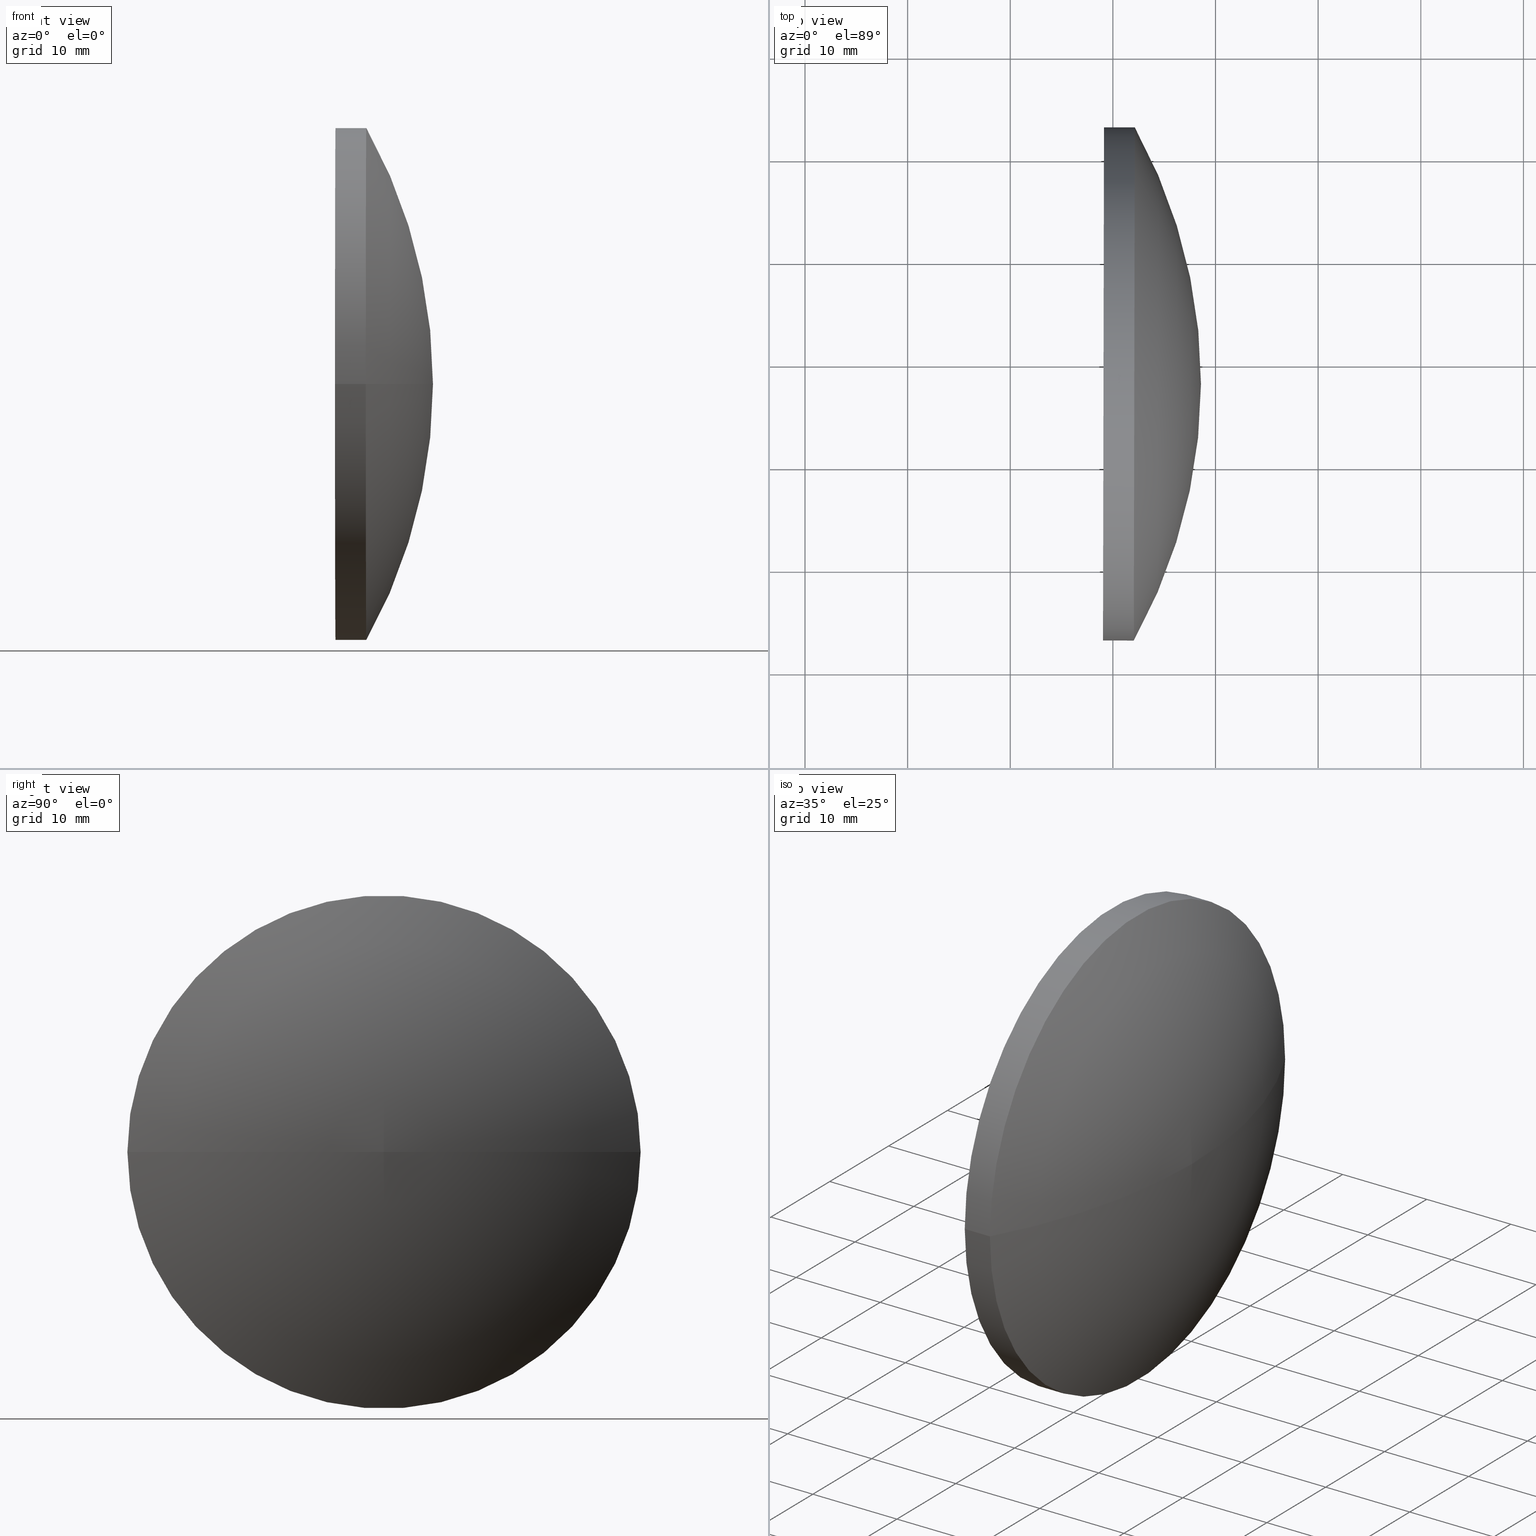
[diagram: canonical four-view strip — front | top / right | iso, engineering-drawing reading convention]
A machine part, canonical four-view strip (front | top / right | iso — engineering-drawing reading convention). The complete STEP part file that produces these views, byte-faithful:
ISO-10303-21;
HEADER;
FILE_DESCRIPTION (( 'STEP AP214' ),
    '1' );
FILE_NAME ('100154.STEP',
    '2019-05-16T02:12:29',
    ( '' ),
    ( '' ),
    'SwSTEP 2.0',
    'SolidWorks 2016',
    '' );
FILE_SCHEMA (( 'AUTOMOTIVE_DESIGN' ));
ENDSEC;

DATA;
#1 = CONICAL_SURFACE ( 'NONE', #83, 25.00578017029977200, 0.001942445883198638900 ) ;
#2 = AXIS2_PLACEMENT_3D ( 'NONE', #29, #45, #178 ) ;
#3 = ORIENTED_EDGE ( 'NONE', *, *, #32, .T. ) ;
#4 = LINE ( 'NONE', #12, #156 ) ;
#5 = DIRECTION ( 'NONE',  ( -0.9999981134525887100, 0.001942444661693687000, -0.0000000000000000000 ) ) ;
#6 = EDGE_LOOP ( 'NONE', ( #137, #54, #63 ) ) ;
#7 = DIRECTION ( 'NONE',  ( -0.001942444661691946700, -0.9999981134525887100, 0.0000000000000000000 ) ) ;
#8 = DIRECTION ( 'NONE',  ( 0.9999981134525887100, -0.001942444661693687000, 0.0000000000000000000 ) ) ;
#9 = EDGE_CURVE ( 'NONE', #180, #187, #65, .T. ) ;
#10 = CARTESIAN_POINT ( 'NONE',  ( 562.0356236752284100, 92.89304286200956500, 0.0000000000000000000 ) ) ;
#11 = VECTOR ( 'NONE', #85, 1000.000000000000000 ) ;
#12 = CARTESIAN_POINT ( 'NONE',  ( 562.0356236752284100, 92.89304286200958000, 3.062324864573997700E-015 ) ) ;
#13 =( LENGTH_UNIT ( ) NAMED_UNIT ( * ) SI_UNIT ( .MILLI., .METRE. ) );
#14 = COLOUR_RGB ( '',1.000000000000000000, 1.000000000000000000, 1.000000000000000000 ) ;
#15 = FILL_AREA_STYLE ('',( #90 ) ) ;
#16 = PRESENTATION_STYLE_ASSIGNMENT (( #132 ) ) ;
#17 = ORIENTED_EDGE ( 'NONE', *, *, #32, .F. ) ;
#18 = ORIENTED_EDGE ( 'NONE', *, *, #79, .T. ) ;
#19 = PRODUCT_DEFINITION_SHAPE ( 'NONE', 'NONE',  #110 ) ;
#20 = AXIS2_PLACEMENT_3D ( 'NONE', #189, #130, #145 ) ;
#21 = CARTESIAN_POINT ( 'NONE',  ( 516.9084745951666900, 118.0685464898730300, 0.0000000000000000000 ) ) ;
#22 = LINE ( 'NONE', #40, #177 ) ;
#23 = CARTESIAN_POINT ( 'NONE',  ( 562.0841960194317200, 117.8987758577195000, 0.0000000000000000000 ) ) ;
#24 = SHAPE_DEFINITION_REPRESENTATION ( #19, #36 ) ;
#25 = CARTESIAN_POINT ( 'NONE',  ( 562.1327683636350200, 142.9045088534293800, 3.062324864573990200E-015 ) ) ;
#26 = DIRECTION ( 'NONE',  ( -0.001942444661694359900, -0.9999981134525884900, 0.0000000000000000000 ) ) ;
#27 = DIRECTION ( 'NONE',  ( -0.9999981134525887100, 0.001942444661693687000, -0.0000000000000000000 ) ) ;
#28 = ORIENTED_EDGE ( 'NONE', *, *, #70, .T. ) ;
#29 = CARTESIAN_POINT ( 'NONE',  ( 0.0000000000000000000, 0.0000000000000000000, 0.0000000000000000000 ) ) ;
#30 = UNCERTAINTY_MEASURE_WITH_UNIT (LENGTH_MEASURE( 1.000000000000000100E-005 ), #13, 'distance_accuracy_value', 'NONE');
#31 = FILL_AREA_STYLE ('',( #159 ) ) ;
#32 = EDGE_CURVE ( 'NONE', #67, #135, #98, .T. ) ;
#33 = SURFACE_STYLE_FILL_AREA ( #31 ) ;
#34 = AXIS2_PLACEMENT_3D ( 'NONE', #44, #89, #114 ) ;
#35 = ORIENTED_EDGE ( 'NONE', *, *, #149, .F. ) ;
#36 = ADVANCED_BREP_SHAPE_REPRESENTATION ( '100154', ( #66, #2 ), #162 ) ;
#37 = VECTOR ( 'NONE', #42, 1000.000000000000100 ) ;
#38 = FACE_OUTER_BOUND ( 'NONE', #185, .T. ) ;
#39 = EDGE_CURVE ( 'NONE', #172, #67, #22, .T. ) ;
#40 = CARTESIAN_POINT ( 'NONE',  ( 559.1327683636350200, 142.9045088534294300, 3.061611221982758700E-015 ) ) ;
#41 = PRODUCT_DEFINITION_FORMATION_WITH_SPECIFIED_SOURCE ( '�κ�', '', #84, .NOT_KNOWN. ) ;
#42 = DIRECTION ( 'NONE',  ( -0.003884881994357643300, -0.9999924538174724800, 0.0000000000000000000 ) ) ;
#43 =( NAMED_UNIT ( * ) PLANE_ANGLE_UNIT ( ) SI_UNIT ( $, .RADIAN. ) );
#44 = CARTESIAN_POINT ( 'NONE',  ( 562.0841960194317200, 117.8987758577195000, 0.0000000000000000000 ) ) ;
#45 = DIRECTION ( 'NONE',  ( 0.0000000000000000000, 0.0000000000000000000, 1.000000000000000000 ) ) ;
#46 = PRESENTATION_STYLE_ASSIGNMENT (( #103 ) ) ;
#47 = ADVANCED_FACE ( 'NONE', ( #57 ), #124, .F. ) ;
#48 = ADVANCED_FACE ( 'NONE', ( #91 ), #129, .T. ) ;
#49 = EDGE_LOOP ( 'NONE', ( #82, #164, #144 ) ) ;
#50 = CIRCLE ( 'NONE', #155, 25.00578017029977200 ) ;
#51 = PRESENTATION_LAYER_ASSIGNMENT (  '', '', ( #119 ) ) ;
#52 = VERTEX_POINT ( 'NONE', #25 ) ;
#53 = DIRECTION ( 'NONE',  ( -0.001942444661691946700, -0.9999981134525887100, 0.0000000000000000000 ) ) ;
#54 = ORIENTED_EDGE ( 'NONE', *, *, #9, .T. ) ;
#55 = DIRECTION ( 'NONE',  ( -0.001942444661693686800, -0.9999981134525886000, 0.0000000000000000000 ) ) ;
#56 =( NAMED_UNIT ( * ) PLANE_ANGLE_UNIT ( ) SI_UNIT ( $, .RADIAN. ) );
#57 = FACE_OUTER_BOUND ( 'NONE', #49, .T. ) ;
#58 = APPLICATION_PROTOCOL_DEFINITION ( 'draft international standard', 'automotive_design', 1998, #143 ) ;
#59 =( LENGTH_UNIT ( ) NAMED_UNIT ( * ) SI_UNIT ( .MILLI., .METRE. ) );
#60 = MECHANICAL_DESIGN_GEOMETRIC_PRESENTATION_REPRESENTATION (  '', ( #119 ), #181 ) ;
#61 = ADVANCED_FACE ( 'NONE', ( #95 ), #1, .T. ) ;
#62 = EDGE_LOOP ( 'NONE', ( #109, #108, #3 ) ) ;
#63 = ORIENTED_EDGE ( 'NONE', *, *, #140, .F. ) ;
#64 = DIRECTION ( 'NONE',  ( 0.001942444661694359900, 0.9999981134525884900, 0.0000000000000000000 ) ) ;
#65 = CIRCLE ( 'NONE', #184, 51.67461240310073100 ) ;
#66 = MANIFOLD_SOLID_BREP ( '��ת1', #97 ) ;
#67 = VERTEX_POINT ( 'NONE', #190 ) ;
#68 = DIRECTION ( 'NONE',  ( 0.9999981134525887100, -0.001942444661693687000, 0.0000000000000000000 ) ) ;
#69 = STYLED_ITEM ( 'NONE', ( #16 ), #36 ) ;
#70 = EDGE_CURVE ( 'NONE', #180, #52, #151, .T. ) ;
#71 = DIRECTION ( 'NONE',  ( -0.001942444661691946700, -0.9999981134525887100, 0.0000000000000000000 ) ) ;
#72 = DIRECTION ( 'NONE',  ( -0.9999981134525887100, 0.001942444661693687000, -0.0000000000000000000 ) ) ;
#73 = AXIS2_PLACEMENT_3D ( 'NONE', #111, #99, #7 ) ;
#74 = COLOUR_RGB ( '',1.000000000000000000, 1.000000000000000000, 1.000000000000000000 ) ;
#75 =( NAMED_UNIT ( * ) SI_UNIT ( $, .STERADIAN. ) SOLID_ANGLE_UNIT ( ) );
#76 = LINE ( 'NONE', #116, #11 ) ;
#77 = CIRCLE ( 'NONE', #183, 24.99995283631469100 ) ;
#78 = ADVANCED_FACE ( 'NONE', ( #38 ), #86, .T. ) ;
#79 = EDGE_CURVE ( 'NONE', #67, #52, #76, .T. ) ;
#80 = PRODUCT_RELATED_PRODUCT_CATEGORY ( 'part', '', ( #84 ) ) ;
#81 = UNCERTAINTY_MEASURE_WITH_UNIT (LENGTH_MEASURE( 1.000000000000000100E-005 ), #126, 'distance_accuracy_value', 'NONE');
#82 = ORIENTED_EDGE ( 'NONE', *, *, #39, .F. ) ;
#83 = AXIS2_PLACEMENT_3D ( 'NONE', #23, #8, #64 ) ;
#84 = PRODUCT ( '100154', '100154', '', ( #146 ) ) ;
#85 = DIRECTION ( 'NONE',  ( 1.000000000000000000, -6.190794404892230300E-016, 0.0000000000000000000 ) ) ;
#86 = TOROIDAL_SURFACE ( 'NONE', #112, -0.08201897295444926500, 51.67461240310074500 ) ;
#87 = DIRECTION ( 'NONE',  ( -0.9999981134525887100, 0.001942444661693687000, -0.0000000000000000000 ) ) ;
#88 = DIRECTION ( 'NONE',  ( 0.9999924538174724800, -0.003884881994358857600, 2.378808637463279100E-019 ) ) ;
#89 = DIRECTION ( 'NONE',  ( -0.9999981134525887100, 0.001942444661693687000, -0.0000000000000000000 ) ) ;
#90 = FILL_AREA_STYLE_COLOUR ( '', #74 ) ;
#91 = FACE_OUTER_BOUND ( 'NONE', #136, .T. ) ;
#92 = APPLICATION_CONTEXT ( 'automotive_design' ) ;
#93 = EDGE_CURVE ( 'NONE', #172, #135, #115, .T. ) ;
#94 =( NAMED_UNIT ( * ) PLANE_ANGLE_UNIT ( ) SI_UNIT ( $, .RADIAN. ) );
#95 = FACE_OUTER_BOUND ( 'NONE', #122, .T. ) ;
#96 = AXIS2_PLACEMENT_3D ( 'NONE', #175, #27, #71 ) ;
#97 = CLOSED_SHELL ( 'NONE', ( #121, #61, #78, #133, #48, #47 ) ) ;
#98 = CIRCLE ( 'NONE', #166, 24.99995283631469100 ) ;
#99 = DIRECTION ( 'NONE',  ( -0.9999981134525887100, 0.001942444661693687000, -0.0000000000000000000 ) ) ;
#100 = EDGE_CURVE ( 'NONE', #135, #187, #4, .T. ) ;
#101 = DIRECTION ( 'NONE',  ( 1.833385873672988000E-015, 1.000000000000000000, 1.224644488793104600E-016 ) ) ;
#102 = CARTESIAN_POINT ( 'NONE',  ( 516.9083152778504200, 117.9865276716512600, 0.0000000000000000000 ) ) ;
#103 = SURFACE_STYLE_USAGE ( .BOTH. , #141 ) ;
#104 = ORIENTED_EDGE ( 'NONE', *, *, #140, .T. ) ;
#105 = CARTESIAN_POINT ( 'NONE',  ( 568.5827651033539500, 117.8861527230796500, 0.0000000000000000000 ) ) ;
#106 = CARTESIAN_POINT ( 'NONE',  ( 516.9083152778504200, 117.9865276716512600, 0.0000000000000000000 ) ) ;
#107 = PRESENTATION_LAYER_ASSIGNMENT (  '', '', ( #69 ) ) ;
#108 = ORIENTED_EDGE ( 'NONE', *, *, #39, .T. ) ;
#109 = ORIENTED_EDGE ( 'NONE', *, *, #93, .F. ) ;
#110 = PRODUCT_DEFINITION ( 'δ֪', '', #41, #179 ) ;
#111 = CARTESIAN_POINT ( 'NONE',  ( 559.0842073387056000, 117.9046031807110400, 0.0000000000000000000 ) ) ;
#112 = AXIS2_PLACEMENT_3D ( 'NONE', #102, #87, #127 ) ;
#113 = DIRECTION ( 'NONE',  ( -0.9999981134525887100, 0.001942444661693687000, -0.0000000000000000000 ) ) ;
#114 = DIRECTION ( 'NONE',  ( -0.001942444661694359900, -0.9999981134525884900, 0.0000000000000000000 ) ) ;
#115 = LINE ( 'NONE', #167, #37 ) ;
#116 = CARTESIAN_POINT ( 'NONE',  ( 562.1327683636350200, 142.9045088534294300, 0.0000000000000000000 ) ) ;
#117 = SURFACE_SIDE_STYLE ('',( #157 ) ) ;
#118 = ORIENTED_EDGE ( 'NONE', *, *, #134, .F. ) ;
#119 = STYLED_ITEM ( 'NONE', ( #46 ), #66 ) ;
#120 = FACE_OUTER_BOUND ( 'NONE', #6, .T. ) ;
#121 = ADVANCED_FACE ( 'NONE', ( #150 ), #152, .F. ) ;
#122 = EDGE_LOOP ( 'NONE', ( #35, #165, #160, #131 ) ) ;
#123 = MECHANICAL_DESIGN_GEOMETRIC_PRESENTATION_REPRESENTATION (  '', ( #69 ), #139 ) ;
#124 = CONICAL_SURFACE ( 'NONE', #73, 24.99995283631469100, 1.568853880911699200 ) ;
#125 = CARTESIAN_POINT ( 'NONE',  ( 562.0841960194317200, 117.8987758577195000, 0.0000000000000000000 ) ) ;
#126 =( LENGTH_UNIT ( ) NAMED_UNIT ( * ) SI_UNIT ( .MILLI., .METRE. ) );
#127 = DIRECTION ( 'NONE',  ( -0.001942444661693686800, -0.9999981134525886000, 0.0000000000000000000 ) ) ;
#128 = CARTESIAN_POINT ( 'NONE',  ( 559.0842073387056000, 117.9046031807110400, 0.0000000000000000000 ) ) ;
#129 = CONICAL_SURFACE ( 'NONE', #171, 25.00578017029977200, 0.001942445883198638900 ) ;
#130 = DIRECTION ( 'NONE',  ( -2.378808637464037400E-019, -1.224644488793104600E-016, 1.000000000000000000 ) ) ;
#131 = ORIENTED_EDGE ( 'NONE', *, *, #79, .F. ) ;
#132 = SURFACE_STYLE_USAGE ( .BOTH. , #117 ) ;
#133 = ADVANCED_FACE ( 'NONE', ( #120 ), #147, .T. ) ;
#134 = EDGE_CURVE ( 'NONE', #187, #52, #50, .T. ) ;
#135 = VERTEX_POINT ( 'NONE', #188 ) ;
#136 = EDGE_LOOP ( 'NONE', ( #168, #17, #18, #104 ) ) ;
#137 = ORIENTED_EDGE ( 'NONE', *, *, #70, .F. ) ;
#138 = DIRECTION ( 'NONE',  ( 0.001942444661694359900, 0.9999981134525884900, 0.0000000000000000000 ) ) ;
#139 =( GEOMETRIC_REPRESENTATION_CONTEXT ( 3 ) GLOBAL_UNCERTAINTY_ASSIGNED_CONTEXT ( ( #153 ) ) GLOBAL_UNIT_ASSIGNED_CONTEXT ( ( #59, #94, #75 ) ) REPRESENTATION_CONTEXT ( 'NONE', 'WORKASPACE' ) );
#140 = EDGE_CURVE ( 'NONE', #52, #187, #163, .T. ) ;
#141 = SURFACE_SIDE_STYLE ('',( #33 ) ) ;
#142 =( NAMED_UNIT ( * ) SI_UNIT ( $, .STERADIAN. ) SOLID_ANGLE_UNIT ( ) );
#143 = APPLICATION_CONTEXT ( 'automotive_design' ) ;
#144 = ORIENTED_EDGE ( 'NONE', *, *, #149, .T. ) ;
#145 = DIRECTION ( 'NONE',  ( 0.0000000000000000000, -1.000000000000000000, -1.224644488793104600E-016 ) ) ;
#146 = PRODUCT_CONTEXT ( 'NONE', #143, 'mechanical' ) ;
#147 = TOROIDAL_SURFACE ( 'NONE', #148, -0.08201897295444926500, 51.67461240310074500 ) ;
#148 = AXIS2_PLACEMENT_3D ( 'NONE', #106, #72, #55 ) ;
#149 = EDGE_CURVE ( 'NONE', #135, #67, #77, .T. ) ;
#150 = FACE_OUTER_BOUND ( 'NONE', #62, .T. ) ;
#151 = CIRCLE ( 'NONE', #20, 51.67461240310075300 ) ;
#152 = CONICAL_SURFACE ( 'NONE', #96, 24.99995283631469100, 1.568853880911699200 ) ;
#153 = UNCERTAINTY_MEASURE_WITH_UNIT (LENGTH_MEASURE( 1.000000000000000100E-005 ), #59, 'distance_accuracy_value', 'NONE');
#154 = DIRECTION ( 'NONE',  ( -0.001942444661691946700, -0.9999981134525887100, 0.0000000000000000000 ) ) ;
#155 = AXIS2_PLACEMENT_3D ( 'NONE', #158, #113, #26 ) ;
#156 = VECTOR ( 'NONE', #88, 1000.000000000000100 ) ;
#157 = SURFACE_STYLE_FILL_AREA ( #15 ) ;
#158 = CARTESIAN_POINT ( 'NONE',  ( 562.0841960194317200, 117.8987758577195000, 0.0000000000000000000 ) ) ;
#159 = FILL_AREA_STYLE_COLOUR ( '', #14 ) ;
#160 = ORIENTED_EDGE ( 'NONE', *, *, #134, .T. ) ;
#161 = APPLICATION_PROTOCOL_DEFINITION ( 'draft international standard', 'automotive_design', 1998, #92 ) ;
#162 =( GEOMETRIC_REPRESENTATION_CONTEXT ( 3 ) GLOBAL_UNCERTAINTY_ASSIGNED_CONTEXT ( ( #81 ) ) GLOBAL_UNIT_ASSIGNED_CONTEXT ( ( #126, #43, #142 ) ) REPRESENTATION_CONTEXT ( 'NONE', 'WORKASPACE' ) );
#163 = CIRCLE ( 'NONE', #34, 25.00578017029977200 ) ;
#164 = ORIENTED_EDGE ( 'NONE', *, *, #93, .T. ) ;
#165 = ORIENTED_EDGE ( 'NONE', *, *, #100, .T. ) ;
#166 = AXIS2_PLACEMENT_3D ( 'NONE', #170, #5, #53 ) ;
#167 = CARTESIAN_POINT ( 'NONE',  ( 559.0356463137761700, 92.90469750799265100, 0.0000000000000000000 ) ) ;
#168 = ORIENTED_EDGE ( 'NONE', *, *, #100, .F. ) ;
#169 = DIRECTION ( 'NONE',  ( 0.0000000000000000000, -0.0000000000000000000, -1.000000000000000000 ) ) ;
#170 = CARTESIAN_POINT ( 'NONE',  ( 559.0842073387056000, 117.9046031807110400, 0.0000000000000000000 ) ) ;
#171 = AXIS2_PLACEMENT_3D ( 'NONE', #125, #68, #138 ) ;
#172 = VERTEX_POINT ( 'NONE', #174 ) ;
#173 =( NAMED_UNIT ( * ) SI_UNIT ( $, .STERADIAN. ) SOLID_ANGLE_UNIT ( ) );
#174 = CARTESIAN_POINT ( 'NONE',  ( 559.1327683636350200, 117.9045088534294300, 0.0000000000000000000 ) ) ;
#175 = CARTESIAN_POINT ( 'NONE',  ( 559.0842073387056000, 117.9046031807110400, 0.0000000000000000000 ) ) ;
#176 = DIRECTION ( 'NONE',  ( -0.9999981134525887100, 0.001942444661693687000, -0.0000000000000000000 ) ) ;
#177 = VECTOR ( 'NONE', #101, 1000.000000000000000 ) ;
#178 = DIRECTION ( 'NONE',  ( 1.000000000000000000, 0.0000000000000000000, 0.0000000000000000000 ) ) ;
#179 = PRODUCT_DEFINITION_CONTEXT ( 'detailed design', #92, 'design' ) ;
#180 = VERTEX_POINT ( 'NONE', #105 ) ;
#181 =( GEOMETRIC_REPRESENTATION_CONTEXT ( 3 ) GLOBAL_UNCERTAINTY_ASSIGNED_CONTEXT ( ( #30 ) ) GLOBAL_UNIT_ASSIGNED_CONTEXT ( ( #13, #56, #173 ) ) REPRESENTATION_CONTEXT ( 'NONE', 'WORKASPACE' ) );
#182 = ORIENTED_EDGE ( 'NONE', *, *, #9, .F. ) ;
#183 = AXIS2_PLACEMENT_3D ( 'NONE', #128, #176, #154 ) ;
#184 = AXIS2_PLACEMENT_3D ( 'NONE', #21, #169, #186 ) ;
#185 = EDGE_LOOP ( 'NONE', ( #182, #28, #118 ) ) ;
#186 = DIRECTION ( 'NONE',  ( -1.000000000000000000, 0.0000000000000000000, 0.0000000000000000000 ) ) ;
#187 = VERTEX_POINT ( 'NONE', #10 ) ;
#188 = CARTESIAN_POINT ( 'NONE',  ( 559.0356463137761700, 92.90469750799265100, 3.061611221982758700E-015 ) ) ;
#189 = CARTESIAN_POINT ( 'NONE',  ( 516.9081559605341500, 117.9045088534294900, -1.004442726980196500E-017 ) ) ;
#190 = CARTESIAN_POINT ( 'NONE',  ( 559.1327683636350200, 142.9045088534294300, 0.0000000000000000000 ) ) ;
ENDSEC;
END-ISO-10303-21;
